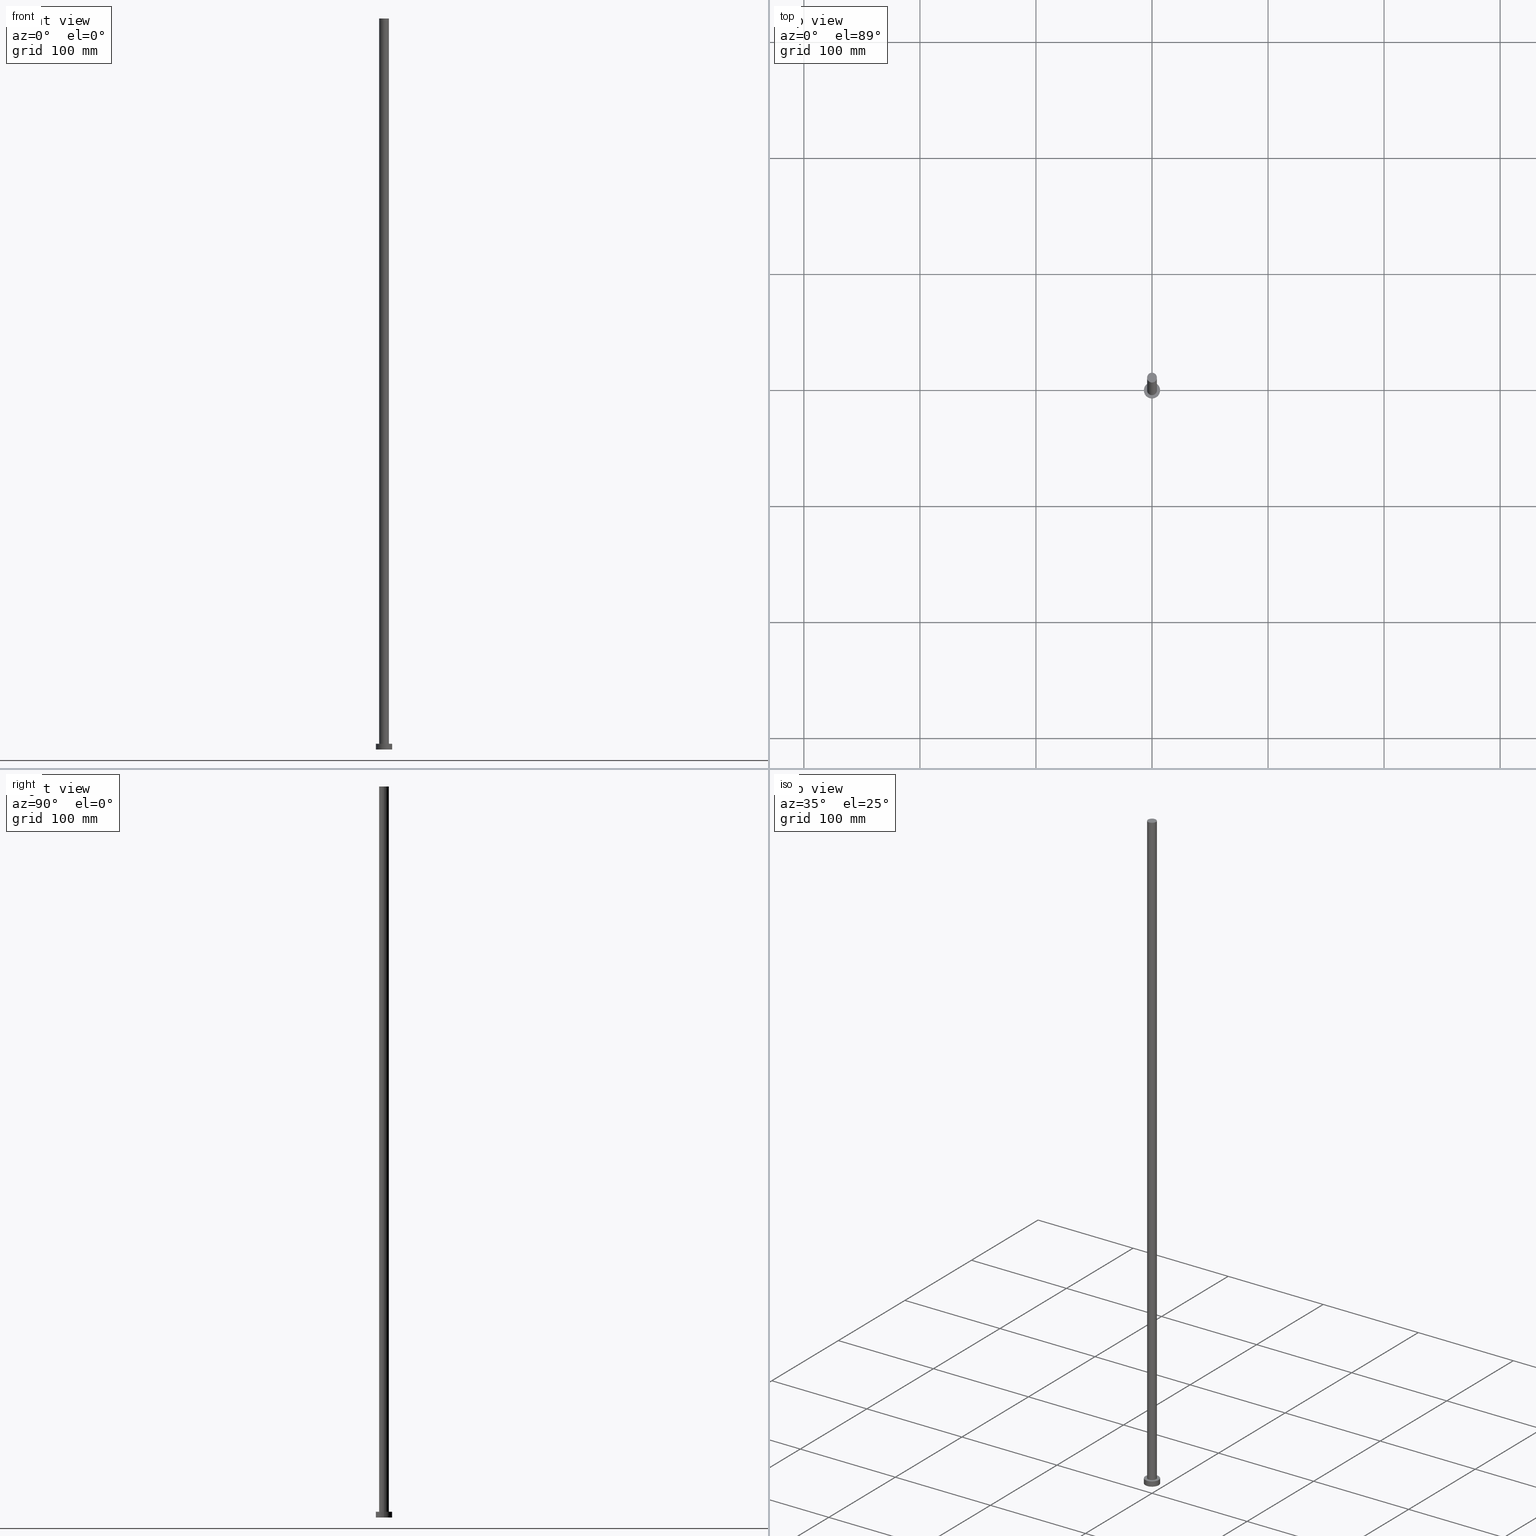
[diagram: canonical four-view strip — front | top / right | iso, engineering-drawing reading convention]
A machine part, canonical four-view strip (front | top / right | iso — engineering-drawing reading convention). The complete STEP part file that produces these views, byte-faithful:
ISO-10303-21;
HEADER;
FILE_DESCRIPTION (( 'STEP AP203' ),
    '1' );
FILE_NAME ('87de.STEP',
    '2023-02-12T11:37:07',
    ( '' ),
    ( '' ),
    'SwSTEP 2.0',
    'SolidWorks 2019',
    '' );
FILE_SCHEMA (( 'CONFIG_CONTROL_DESIGN' ));
ENDSEC;

DATA;
#1 = VECTOR ( 'NONE', #229, 1000.000000000000000 ) ;
#2 = CALENDAR_DATE ( 2023, 12, 2 ) ;
#3 = LOCAL_TIME ( 12, 37, 7.000000000000000000, #25 ) ;
#4 = APPROVAL_ROLE ( '' ) ;
#5 = CC_DESIGN_APPROVAL ( #163, ( #99 ) ) ;
#6 = PERSON_AND_ORGANIZATION_ROLE ( 'creator' ) ;
#7 = VERTEX_POINT ( 'NONE', #142 ) ;
#8 = LINE ( 'NONE', #31, #30 ) ;
#9 = FACE_OUTER_BOUND ( 'NONE', #225, .T. ) ;
#10 = CIRCLE ( 'NONE', #14, 4.250000000000000000 ) ;
#11 = CARTESIAN_POINT ( 'NONE',  ( 0.000000000000000000, 0.000000000000000000, 630.0000000000000000 ) ) ;
#12 = DIRECTION ( 'NONE',  ( 1.000000000000000000, 0.000000000000000000, 0.000000000000000000 ) ) ;
#13 = CARTESIAN_POINT ( 'NONE',  ( 0.000000000000000000, 0.000000000000000000, 5.000000000000000000 ) ) ;
#14 = AXIS2_PLACEMENT_3D ( 'NONE', #170, #149, #194 ) ;
#15 = CARTESIAN_POINT ( 'NONE',  ( 0.000000000000000000, 0.000000000000000000, 630.0000000000000000 ) ) ;
#16 = DIRECTION ( 'NONE',  ( -1.000000000000000000, 0.000000000000000000, 0.000000000000000000 ) ) ;
#17 = DIRECTION ( 'NONE',  ( -0.000000000000000000, -0.000000000000000000, -1.000000000000000000 ) ) ;
#18 = CC_DESIGN_PERSON_AND_ORGANIZATION_ASSIGNMENT ( #23, #175, ( #223 ) ) ;
#19 = AXIS2_PLACEMENT_3D ( 'NONE', #29, #110, #131 ) ;
#20 =( NAMED_UNIT ( * ) PLANE_ANGLE_UNIT ( ) SI_UNIT ( $, .RADIAN. ) );
#21 = FACE_OUTER_BOUND ( 'NONE', #197, .T. ) ;
#22 = VERTEX_POINT ( 'NONE', #185 ) ;
#23 = PERSON_AND_ORGANIZATION ( #203, #193 ) ;
#24 = EDGE_CURVE ( 'NONE', #7, #70, #38, .T. ) ;
#25 = COORDINATED_UNIVERSAL_TIME_OFFSET ( 1, 0, .AHEAD. ) ;
#26 = AXIS2_PLACEMENT_3D ( 'NONE', #11, #188, #92 ) ;
#27 = ADVANCED_FACE ( 'NONE', ( #148 ), #210, .T. ) ;
#28 = ORIENTED_EDGE ( 'NONE', *, *, #78, .F. ) ;
#29 = CARTESIAN_POINT ( 'NONE',  ( 0.000000000000000000, 0.000000000000000000, 5.000000000000000000 ) ) ;
#30 = VECTOR ( 'NONE', #129, 1000.000000000000000 ) ;
#31 = CARTESIAN_POINT ( 'NONE',  ( -7.000000000000000000, 0.000000000000000000, 5.000000000000000000 ) ) ;
#32 = CARTESIAN_POINT ( 'NONE',  ( -7.000000000000000000, 0.000000000000000000, 5.000000000000000000 ) ) ;
#33 = AXIS2_PLACEMENT_3D ( 'NONE', #189, #95, #226 ) ;
#34 = LOCAL_TIME ( 12, 37, 7.000000000000000000, #67 ) ;
#35 = CC_DESIGN_DATE_AND_TIME_ASSIGNMENT ( #199, #138, ( #99 ) ) ;
#36 = DIRECTION ( 'NONE',  ( 0.000000000000000000, 0.000000000000000000, 1.000000000000000000 ) ) ;
#37 = CARTESIAN_POINT ( 'NONE',  ( 0.000000000000000000, 0.000000000000000000, 630.0000000000000000 ) ) ;
#38 = CIRCLE ( 'NONE', #216, 4.250000000000000000 ) ;
#39 = LOCAL_TIME ( 12, 37, 7.000000000000000000, #156 ) ;
#40 = EDGE_CURVE ( 'NONE', #43, #202, #186, .T. ) ;
#41 = DIRECTION ( 'NONE',  ( 0.000000000000000000, 0.000000000000000000, 1.000000000000000000 ) ) ;
#42 = PERSON_AND_ORGANIZATION ( #203, #193 ) ;
#43 = VERTEX_POINT ( 'NONE', #32 ) ;
#44 = LOCAL_TIME ( 12, 37, 7.000000000000000000, #108 ) ;
#45 = EDGE_LOOP ( 'NONE', ( #105, #109, #227, #123 ) ) ;
#46 = EDGE_LOOP ( 'NONE', ( #159, #52 ) ) ;
#47 = ORIENTED_EDGE ( 'NONE', *, *, #171, .T. ) ;
#48 = AXIS2_PLACEMENT_3D ( 'NONE', #236, #233, #56 ) ;
#49 = MANIFOLD_SOLID_BREP ( 'P�idat vysunut�m3', #151 ) ;
#50 = DESIGN_CONTEXT ( 'detailed design', #195, 'design' ) ;
#51 = CARTESIAN_POINT ( 'NONE',  ( -7.000000000000000000, 0.000000000000000000, 0.000000000000000000 ) ) ;
#52 = ORIENTED_EDGE ( 'NONE', *, *, #115, .T. ) ;
#53 = AXIS2_PLACEMENT_3D ( 'NONE', #117, #82, #59 ) ;
#54 = FACE_BOUND ( 'NONE', #87, .T. ) ;
#55 = CYLINDRICAL_SURFACE ( 'NONE', #172, 4.250000000000000000 ) ;
#56 = DIRECTION ( 'NONE',  ( 1.000000000000000000, 0.000000000000000000, 0.000000000000000000 ) ) ;
#57 = VECTOR ( 'NONE', #17, 1000.000000000000000 ) ;
#58 = APPROVAL_PERSON_ORGANIZATION ( #237, #152, #181 ) ;
#59 = DIRECTION ( 'NONE',  ( 1.000000000000000000, 0.000000000000000000, -0.000000000000000000 ) ) ;
#60 = PERSON_AND_ORGANIZATION_ROLE ( 'design_owner' ) ;
#61 = PERSON_AND_ORGANIZATION ( #203, #193 ) ;
#62 = CC_DESIGN_APPROVAL ( #231, ( #223 ) ) ;
#63 = APPROVAL_DATE_TIME ( #88, #152 ) ;
#64 = CALENDAR_DATE ( 2023, 12, 2 ) ;
#65 = VECTOR ( 'NONE', #165, 1000.000000000000000 ) ;
#66 = DATE_AND_TIME ( #64, #3 ) ;
#67 = COORDINATED_UNIVERSAL_TIME_OFFSET ( 1, 0, .AHEAD. ) ;
#68 = PERSON_AND_ORGANIZATION ( #203, #193 ) ;
#69 = AXIS2_PLACEMENT_3D ( 'NONE', #132, #217, #214 ) ;
#70 = VERTEX_POINT ( 'NONE', #207 ) ;
#71 = ORIENTED_EDGE ( 'NONE', *, *, #221, .T. ) ;
#72 = CARTESIAN_POINT ( 'NONE',  ( 0.000000000000000000, 0.000000000000000000, 5.000000000000000000 ) ) ;
#73 = ADVANCED_FACE ( 'NONE', ( #9 ), #55, .T. ) ;
#74 = LINE ( 'NONE', #247, #1 ) ;
#75 = SECURITY_CLASSIFICATION ( '', '', #119 ) ;
#76 = VERTEX_POINT ( 'NONE', #51 ) ;
#77 = CYLINDRICAL_SURFACE ( 'NONE', #154, 7.000000000000000000 ) ;
#78 = EDGE_CURVE ( 'NONE', #70, #7, #173, .T. ) ;
#79 = CARTESIAN_POINT ( 'NONE',  ( 0.000000000000000000, 0.000000000000000000, 0.000000000000000000 ) ) ;
#80 = PLANE ( 'NONE',  #69 ) ;
#81 = EDGE_CURVE ( 'NONE', #112, #7, #167, .T. ) ;
#82 = DIRECTION ( 'NONE',  ( 0.000000000000000000, 0.000000000000000000, 1.000000000000000000 ) ) ;
#83 = FACE_OUTER_BOUND ( 'NONE', #45, .T. ) ;
#84 = COORDINATED_UNIVERSAL_TIME_OFFSET ( 1, 0, .AHEAD. ) ;
#85 = EDGE_LOOP ( 'NONE', ( #120, #103 ) ) ;
#86 = EDGE_CURVE ( 'NONE', #43, #76, #8, .T. ) ;
#87 = EDGE_LOOP ( 'NONE', ( #157, #28 ) ) ;
#88 = DATE_AND_TIME ( #141, #34 ) ;
#89 = ORIENTED_EDGE ( 'NONE', *, *, #86, .F. ) ;
#90 = DIRECTION ( 'NONE',  ( -1.000000000000000000, 0.000000000000000000, 0.000000000000000000 ) ) ;
#91 = DIRECTION ( 'NONE',  ( -1.000000000000000000, 0.000000000000000000, 0.000000000000000000 ) ) ;
#92 = DIRECTION ( 'NONE',  ( 1.000000000000000000, 0.000000000000000000, -0.000000000000000000 ) ) ;
#93 = CC_DESIGN_PERSON_AND_ORGANIZATION_ASSIGNMENT ( #219, #118, ( #75 ) ) ;
#94 = VERTEX_POINT ( 'NONE', #111 ) ;
#95 = DIRECTION ( 'NONE',  ( 0.000000000000000000, 0.000000000000000000, 1.000000000000000000 ) ) ;
#96 = APPLICATION_PROTOCOL_DEFINITION ( 'international standard', 'config_control_design', 1994, #184 ) ;
#97 = DIRECTION ( 'NONE',  ( 0.000000000000000000, 0.000000000000000000, 1.000000000000000000 ) ) ;
#98 = DIRECTION ( 'NONE',  ( 1.000000000000000000, 0.000000000000000000, 0.000000000000000000 ) ) ;
#99 = PRODUCT_DEFINITION ( 'NEZN�M�', '', #223, #50 ) ;
#100 = AXIS2_PLACEMENT_3D ( 'NONE', #79, #36, #254 ) ;
#101 = FACE_OUTER_BOUND ( 'NONE', #128, .T. ) ;
#102 = CALENDAR_DATE ( 2023, 12, 2 ) ;
#103 = ORIENTED_EDGE ( 'NONE', *, *, #206, .T. ) ;
#104 = APPROVAL_ROLE ( '' ) ;
#105 = ORIENTED_EDGE ( 'NONE', *, *, #127, .F. ) ;
#106 = ADVANCED_FACE ( 'NONE', ( #168 ), #164, .T. ) ;
#107 = CIRCLE ( 'NONE', #180, 7.000000000000000000 ) ;
#108 = COORDINATED_UNIVERSAL_TIME_OFFSET ( 1, 0, .AHEAD. ) ;
#109 = ORIENTED_EDGE ( 'NONE', *, *, #238, .F. ) ;
#110 = DIRECTION ( 'NONE',  ( 0.000000000000000000, 0.000000000000000000, 1.000000000000000000 ) ) ;
#111 = CARTESIAN_POINT ( 'NONE',  ( 7.000000000000000000, 8.572527594031473190E-16, 0.000000000000000000 ) ) ;
#112 = VERTEX_POINT ( 'NONE', #246 ) ;
#113 = CARTESIAN_POINT ( 'NONE',  ( 0.000000000000000000, 0.000000000000000000, 0.000000000000000000 ) ) ;
#114 = DIRECTION ( 'NONE',  ( -1.000000000000000000, 0.000000000000000000, 0.000000000000000000 ) ) ;
#115 = EDGE_CURVE ( 'NONE', #202, #43, #107, .T. ) ;
#116 = CIRCLE ( 'NONE', #137, 4.250000000000000000 ) ;
#117 = CARTESIAN_POINT ( 'NONE',  ( 0.000000000000000000, 0.000000000000000000, 0.000000000000000000 ) ) ;
#118 = PERSON_AND_ORGANIZATION_ROLE ( 'classification_officer' ) ;
#119 = SECURITY_CLASSIFICATION_LEVEL ( 'unclassified' ) ;
#120 = ORIENTED_EDGE ( 'NONE', *, *, #238, .T. ) ;
#121 = CALENDAR_DATE ( 2023, 12, 2 ) ;
#122 = APPROVAL_STATUS ( 'not_yet_approved' ) ;
#123 = ORIENTED_EDGE ( 'NONE', *, *, #24, .T. ) ;
#124 = PRODUCT_DEFINITION_SHAPE ( 'NONE', 'NONE',  #99 ) ;
#125 = ORIENTED_EDGE ( 'NONE', *, *, #221, .F. ) ;
#126 = ORIENTED_EDGE ( 'NONE', *, *, #78, .T. ) ;
#127 = EDGE_CURVE ( 'NONE', #22, #70, #74, .T. ) ;
#128 = EDGE_LOOP ( 'NONE', ( #183, #125 ) ) ;
#129 = DIRECTION ( 'NONE',  ( -0.000000000000000000, -0.000000000000000000, -1.000000000000000000 ) ) ;
#130 = FACE_OUTER_BOUND ( 'NONE', #46, .T. ) ;
#131 = DIRECTION ( 'NONE',  ( 1.000000000000000000, 0.000000000000000000, 0.000000000000000000 ) ) ;
#132 = CARTESIAN_POINT ( 'NONE',  ( 0.000000000000000000, 0.000000000000000000, 5.000000000000000000 ) ) ;
#133 = CYLINDRICAL_SURFACE ( 'NONE', #160, 4.250000000000000000 ) ;
#134 = PRODUCT_RELATED_PRODUCT_CATEGORY ( 'detail', '', ( #162 ) ) ;
#135 =( LENGTH_UNIT ( ) NAMED_UNIT ( * ) SI_UNIT ( .MILLI., .METRE. ) );
#136 = APPLICATION_PROTOCOL_DEFINITION ( 'international standard', 'config_control_design', 1994, #195 ) ;
#137 = AXIS2_PLACEMENT_3D ( 'NONE', #15, #97, #98 ) ;
#138 = DATE_TIME_ROLE ( 'creation_date' ) ;
#139 = ORIENTED_EDGE ( 'NONE', *, *, #86, .T. ) ;
#140 = APPROVAL_DATE_TIME ( #66, #163 ) ;
#141 = CALENDAR_DATE ( 2023, 12, 2 ) ;
#142 = CARTESIAN_POINT ( 'NONE',  ( -4.250000000000000000, 0.000000000000000000, 5.000000000000000000 ) ) ;
#143 =( GEOMETRIC_REPRESENTATION_CONTEXT ( 3 ) GLOBAL_UNCERTAINTY_ASSIGNED_CONTEXT ( ( #153 ) ) GLOBAL_UNIT_ASSIGNED_CONTEXT ( ( #135, #20, #252 ) ) REPRESENTATION_CONTEXT ( 'NONE', 'WORKASPACE' ) );
#144 = CC_DESIGN_PERSON_AND_ORGANIZATION_ASSIGNMENT ( #68, #6, ( #99 ) ) ;
#145 = DIRECTION ( 'NONE',  ( -0.000000000000000000, -0.000000000000000000, -1.000000000000000000 ) ) ;
#146 = ADVANCED_FACE ( 'NONE', ( #54, #130 ), #80, .T. ) ;
#147 = AXIS2_PLACEMENT_3D ( 'NONE', #113, #41, #235 ) ;
#148 = FACE_OUTER_BOUND ( 'NONE', #242, .T. ) ;
#149 = DIRECTION ( 'NONE',  ( 0.000000000000000000, 0.000000000000000000, 1.000000000000000000 ) ) ;
#150 = MECHANICAL_CONTEXT ( 'NONE', #184, 'mechanical' ) ;
#151 = CLOSED_SHELL ( 'NONE', ( #73, #27, #212, #146, #253, #191, #106 ) ) ;
#152 = APPROVAL ( #122, 'NEUR�EN�' ) ;
#153 = UNCERTAINTY_MEASURE_WITH_UNIT (LENGTH_MEASURE( 1.000000000000000082E-05 ), #135, 'distance_accuracy_value', 'NONE');
#154 = AXIS2_PLACEMENT_3D ( 'NONE', #250, #232, #114 ) ;
#155 = APPROVAL_DATE_TIME ( #204, #231 ) ;
#156 = COORDINATED_UNIVERSAL_TIME_OFFSET ( 1, 0, .AHEAD. ) ;
#157 = ORIENTED_EDGE ( 'NONE', *, *, #24, .F. ) ;
#158 = PERSON_AND_ORGANIZATION ( #203, #193 ) ;
#159 = ORIENTED_EDGE ( 'NONE', *, *, #40, .T. ) ;
#160 = AXIS2_PLACEMENT_3D ( 'NONE', #37, #192, #16 ) ;
#161 = ORIENTED_EDGE ( 'NONE', *, *, #215, .T. ) ;
#162 = PRODUCT ( '87de', '87de', '', ( #150 ) ) ;
#163 = APPROVAL ( #239, 'NEUR�EN�' ) ;
#164 = PLANE ( 'NONE',  #26 ) ;
#165 = DIRECTION ( 'NONE',  ( -0.000000000000000000, -0.000000000000000000, -1.000000000000000000 ) ) ;
#166 = APPROVAL_PERSON_ORGANIZATION ( #174, #163, #104 ) ;
#167 = LINE ( 'NONE', #187, #65 ) ;
#168 = FACE_OUTER_BOUND ( 'NONE', #85, .T. ) ;
#169 = CARTESIAN_POINT ( 'NONE',  ( 0.000000000000000000, 0.000000000000000000, 630.0000000000000000 ) ) ;
#170 = CARTESIAN_POINT ( 'NONE',  ( 0.000000000000000000, 0.000000000000000000, 630.0000000000000000 ) ) ;
#171 = EDGE_CURVE ( 'NONE', #202, #94, #190, .T. ) ;
#172 = AXIS2_PLACEMENT_3D ( 'NONE', #169, #248, #91 ) ;
#173 = CIRCLE ( 'NONE', #19, 4.250000000000000000 ) ;
#174 = PERSON_AND_ORGANIZATION ( #203, #193 ) ;
#175 = PERSON_AND_ORGANIZATION_ROLE ( 'design_supplier' ) ;
#176 = CC_DESIGN_APPROVAL ( #152, ( #75 ) ) ;
#177 = DATE_AND_TIME ( #2, #44 ) ;
#178 = ORIENTED_EDGE ( 'NONE', *, *, #171, .F. ) ;
#179 = PERSON_AND_ORGANIZATION_ROLE ( 'creator' ) ;
#180 = AXIS2_PLACEMENT_3D ( 'NONE', #72, #228, #12 ) ;
#181 = APPROVAL_ROLE ( '' ) ;
#182 = LOCAL_TIME ( 12, 37, 7.000000000000000000, #84 ) ;
#183 = ORIENTED_EDGE ( 'NONE', *, *, #215, .F. ) ;
#184 = APPLICATION_CONTEXT ( 'configuration controlled 3d designs of mechanical parts and assemblies' ) ;
#185 = CARTESIAN_POINT ( 'NONE',  ( 4.250000000000000000, 5.204748896376250699E-16, 630.0000000000000000 ) ) ;
#186 = CIRCLE ( 'NONE', #33, 7.000000000000000000 ) ;
#187 = CARTESIAN_POINT ( 'NONE',  ( -4.250000000000000000, 0.000000000000000000, 630.0000000000000000 ) ) ;
#188 = DIRECTION ( 'NONE',  ( 0.000000000000000000, 0.000000000000000000, 1.000000000000000000 ) ) ;
#189 = CARTESIAN_POINT ( 'NONE',  ( 0.000000000000000000, 0.000000000000000000, 5.000000000000000000 ) ) ;
#190 = LINE ( 'NONE', #255, #57 ) ;
#191 = ADVANCED_FACE ( 'NONE', ( #83 ), #133, .T. ) ;
#192 = DIRECTION ( 'NONE',  ( -0.000000000000000000, -0.000000000000000000, -1.000000000000000000 ) ) ;
#193 = ORGANIZATION ( 'NEUR�EN�', 'NEUR�EN�', '' ) ;
#194 = DIRECTION ( 'NONE',  ( 1.000000000000000000, 0.000000000000000000, 0.000000000000000000 ) ) ;
#195 = APPLICATION_CONTEXT ( 'configuration controlled 3d designs of mechanical parts and assemblies' ) ;
#196 = SHAPE_DEFINITION_REPRESENTATION ( #124, #234 ) ;
#197 = EDGE_LOOP ( 'NONE', ( #178, #208, #139, #161 ) ) ;
#198 = CC_DESIGN_SECURITY_CLASSIFICATION ( #75, ( #223 ) ) ;
#199 = DATE_AND_TIME ( #102, #39 ) ;
#200 = CC_DESIGN_PERSON_AND_ORGANIZATION_ASSIGNMENT ( #158, #179, ( #223 ) ) ;
#201 = ORIENTED_EDGE ( 'NONE', *, *, #206, .F. ) ;
#202 = VERTEX_POINT ( 'NONE', #249 ) ;
#203 = PERSON ( 'NEUR�EN�', 'NEUR�EN�', 'NEUR�EN�', ('NEUR�EN�'), ('NEUR�EN�'), ('NEUR�EN�') ) ;
#204 = DATE_AND_TIME ( #121, #182 ) ;
#205 = ORIENTED_EDGE ( 'NONE', *, *, #127, .T. ) ;
#206 = EDGE_CURVE ( 'NONE', #22, #112, #10, .T. ) ;
#207 = CARTESIAN_POINT ( 'NONE',  ( 4.250000000000000000, 5.204748896376250699E-16, 5.000000000000000000 ) ) ;
#208 = ORIENTED_EDGE ( 'NONE', *, *, #40, .F. ) ;
#209 = CC_DESIGN_PERSON_AND_ORGANIZATION_ASSIGNMENT ( #61, #60, ( #162 ) ) ;
#210 = CYLINDRICAL_SURFACE ( 'NONE', #251, 7.000000000000000000 ) ;
#211 = DIRECTION ( 'NONE',  ( 0.000000000000000000, 0.000000000000000000, 1.000000000000000000 ) ) ;
#212 = ADVANCED_FACE ( 'NONE', ( #21 ), #77, .T. ) ;
#213 = PLANE ( 'NONE',  #53 ) ;
#214 = DIRECTION ( 'NONE',  ( 1.000000000000000000, 0.000000000000000000, -0.000000000000000000 ) ) ;
#215 = EDGE_CURVE ( 'NONE', #76, #94, #218, .T. ) ;
#216 = AXIS2_PLACEMENT_3D ( 'NONE', #13, #211, #244 ) ;
#217 = DIRECTION ( 'NONE',  ( 0.000000000000000000, 0.000000000000000000, 1.000000000000000000 ) ) ;
#218 = CIRCLE ( 'NONE', #100, 7.000000000000000000 ) ;
#219 = PERSON_AND_ORGANIZATION ( #203, #193 ) ;
#220 = ORIENTED_EDGE ( 'NONE', *, *, #81, .F. ) ;
#221 = EDGE_CURVE ( 'NONE', #94, #76, #243, .T. ) ;
#222 = ORIENTED_EDGE ( 'NONE', *, *, #115, .F. ) ;
#223 = PRODUCT_DEFINITION_FORMATION_WITH_SPECIFIED_SOURCE ( 'LIBOVOLN�', '', #162, .NOT_KNOWN. ) ;
#224 = APPROVAL_STATUS ( 'not_yet_approved' ) ;
#225 = EDGE_LOOP ( 'NONE', ( #201, #205, #126, #220 ) ) ;
#226 = DIRECTION ( 'NONE',  ( 1.000000000000000000, 0.000000000000000000, 0.000000000000000000 ) ) ;
#227 = ORIENTED_EDGE ( 'NONE', *, *, #81, .T. ) ;
#228 = DIRECTION ( 'NONE',  ( 0.000000000000000000, 0.000000000000000000, 1.000000000000000000 ) ) ;
#229 = DIRECTION ( 'NONE',  ( -0.000000000000000000, -0.000000000000000000, -1.000000000000000000 ) ) ;
#230 = CARTESIAN_POINT ( 'NONE',  ( 0.000000000000000000, 0.000000000000000000, 5.000000000000000000 ) ) ;
#231 = APPROVAL ( #224, 'NEUR�EN�' ) ;
#232 = DIRECTION ( 'NONE',  ( -0.000000000000000000, -0.000000000000000000, -1.000000000000000000 ) ) ;
#233 = DIRECTION ( 'NONE',  ( 0.000000000000000000, 0.000000000000000000, 1.000000000000000000 ) ) ;
#234 = ADVANCED_BREP_SHAPE_REPRESENTATION ( '87de', ( #49, #147 ), #143 ) ;
#235 = DIRECTION ( 'NONE',  ( 1.000000000000000000, 0.000000000000000000, 0.000000000000000000 ) ) ;
#236 = CARTESIAN_POINT ( 'NONE',  ( 0.000000000000000000, 0.000000000000000000, 0.000000000000000000 ) ) ;
#237 = PERSON_AND_ORGANIZATION ( #203, #193 ) ;
#238 = EDGE_CURVE ( 'NONE', #112, #22, #116, .T. ) ;
#239 = APPROVAL_STATUS ( 'not_yet_approved' ) ;
#240 = APPROVAL_PERSON_ORGANIZATION ( #42, #231, #4 ) ;
#241 = DATE_TIME_ROLE ( 'classification_date' ) ;
#242 = EDGE_LOOP ( 'NONE', ( #222, #47, #71, #89 ) ) ;
#243 = CIRCLE ( 'NONE', #48, 7.000000000000000000 ) ;
#244 = DIRECTION ( 'NONE',  ( 1.000000000000000000, 0.000000000000000000, 0.000000000000000000 ) ) ;
#245 = CC_DESIGN_DATE_AND_TIME_ASSIGNMENT ( #177, #241, ( #75 ) ) ;
#246 = CARTESIAN_POINT ( 'NONE',  ( -4.250000000000000000, 0.000000000000000000, 630.0000000000000000 ) ) ;
#247 = CARTESIAN_POINT ( 'NONE',  ( 4.250000000000000000, 5.204748896376250699E-16, 630.0000000000000000 ) ) ;
#248 = DIRECTION ( 'NONE',  ( -0.000000000000000000, -0.000000000000000000, -1.000000000000000000 ) ) ;
#249 = CARTESIAN_POINT ( 'NONE',  ( 7.000000000000000000, 8.572527594031473190E-16, 5.000000000000000000 ) ) ;
#250 = CARTESIAN_POINT ( 'NONE',  ( 0.000000000000000000, 0.000000000000000000, 5.000000000000000000 ) ) ;
#251 = AXIS2_PLACEMENT_3D ( 'NONE', #230, #145, #90 ) ;
#252 =( NAMED_UNIT ( * ) SI_UNIT ( $, .STERADIAN. ) SOLID_ANGLE_UNIT ( ) );
#253 = ADVANCED_FACE ( 'NONE', ( #101 ), #213, .F. ) ;
#254 = DIRECTION ( 'NONE',  ( 1.000000000000000000, 0.000000000000000000, 0.000000000000000000 ) ) ;
#255 = CARTESIAN_POINT ( 'NONE',  ( 7.000000000000000000, 8.572527594031473190E-16, 5.000000000000000000 ) ) ;
ENDSEC;
END-ISO-10303-21;
